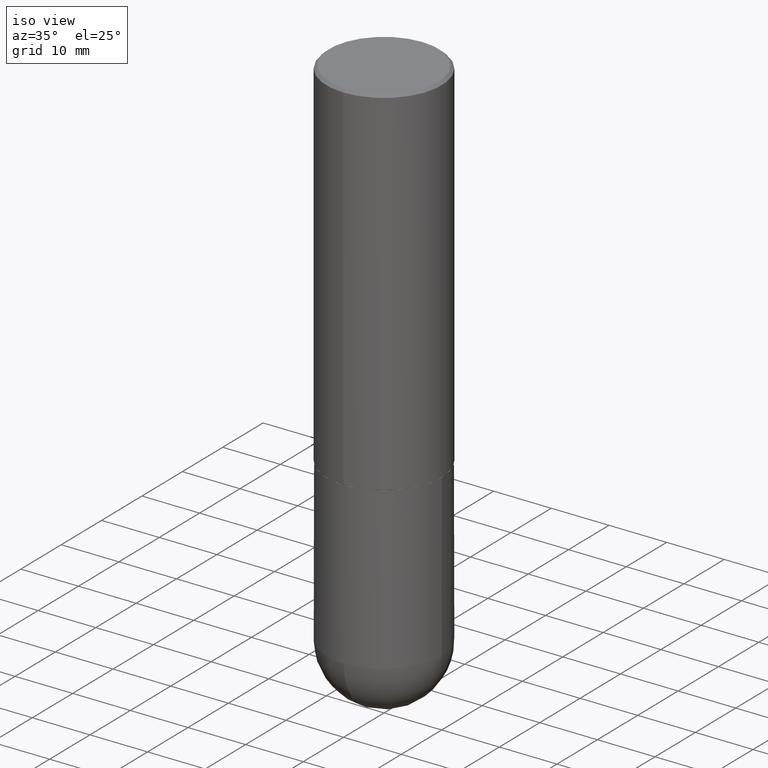
[diagram: clean part render]
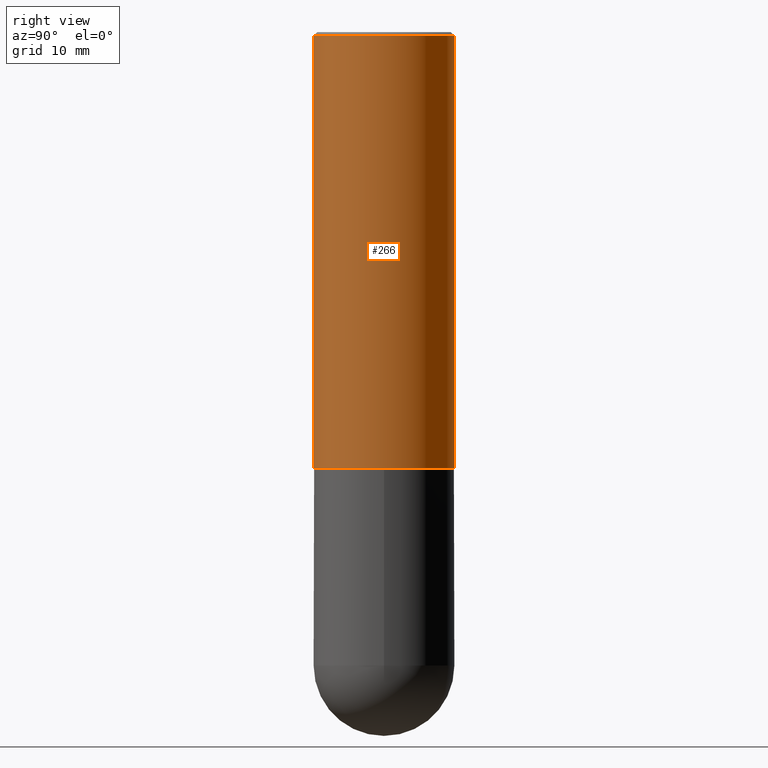
[diagram: tour spotlight — one face highlighted and labeled with its STEP entity id]
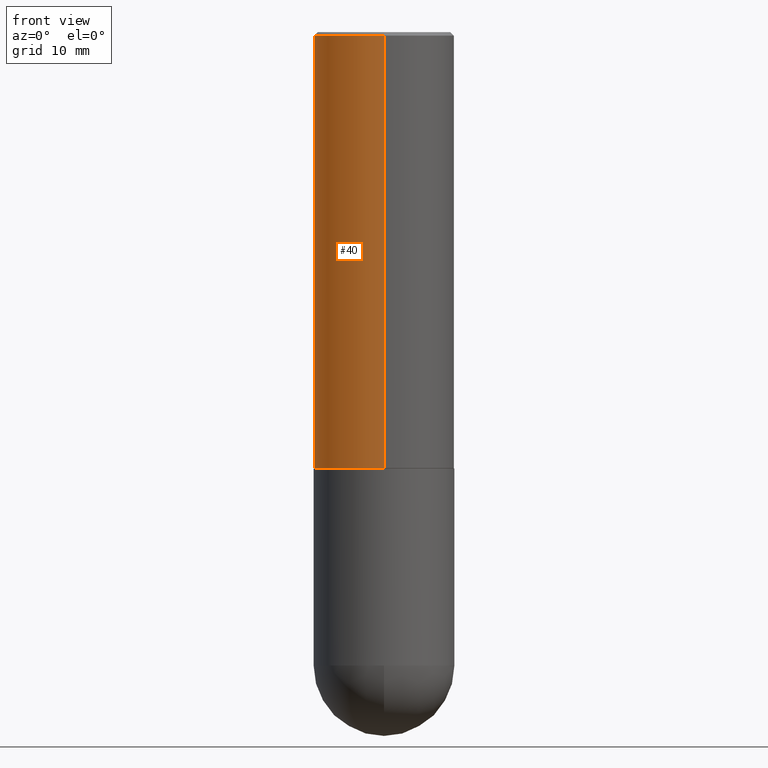
[diagram: tour spotlight — one face highlighted and labeled with its STEP entity id]
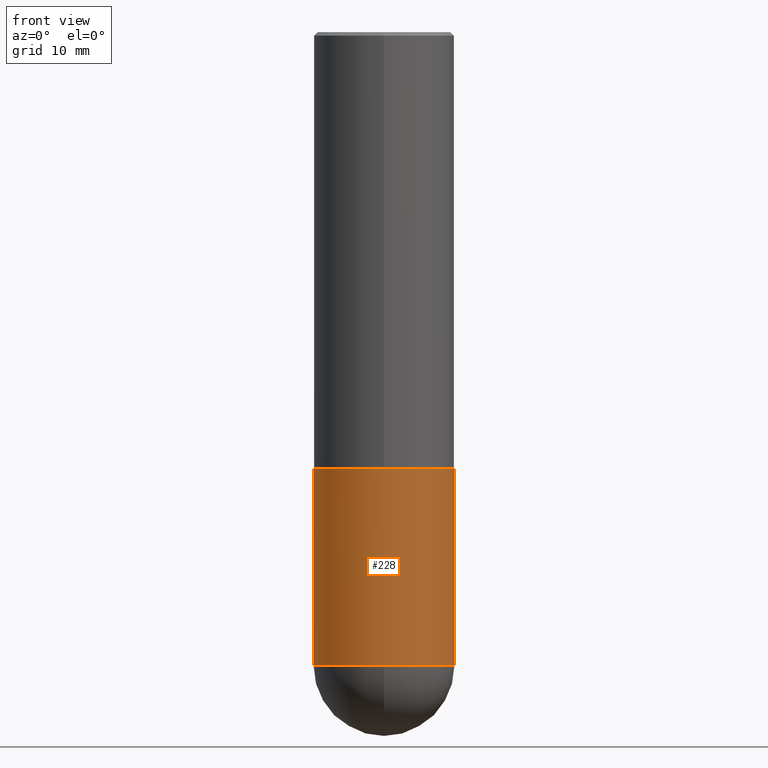
[diagram: tour spotlight — one face highlighted and labeled with its STEP entity id]
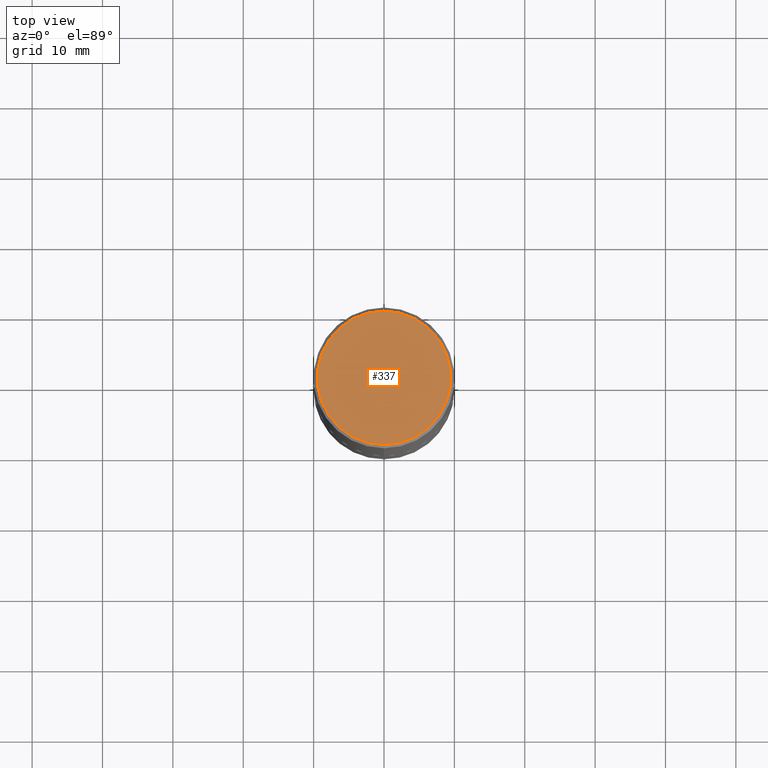
[diagram: tour spotlight — one face highlighted and labeled with its STEP entity id]
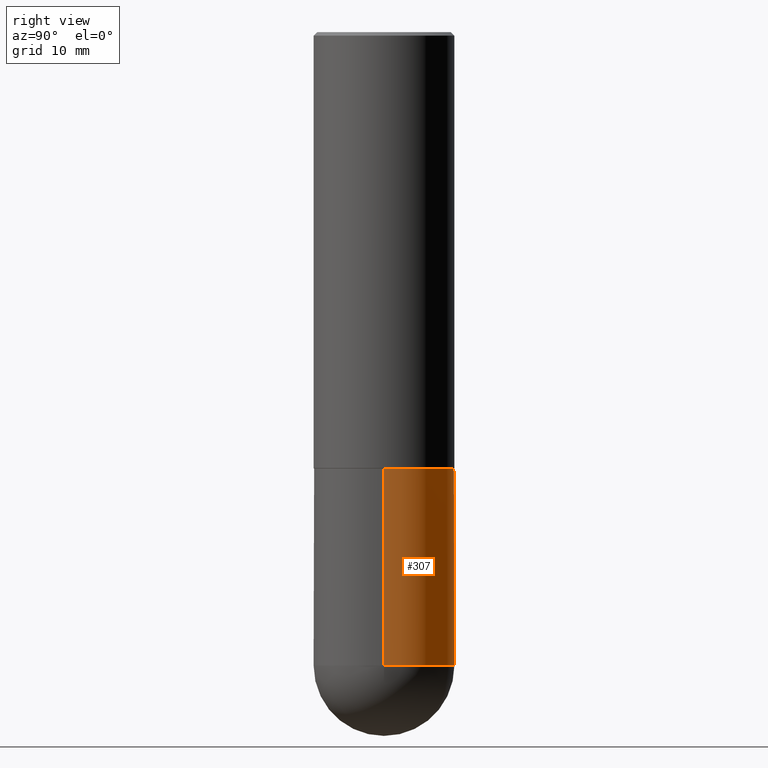
[diagram: tour spotlight — one face highlighted and labeled with its STEP entity id]
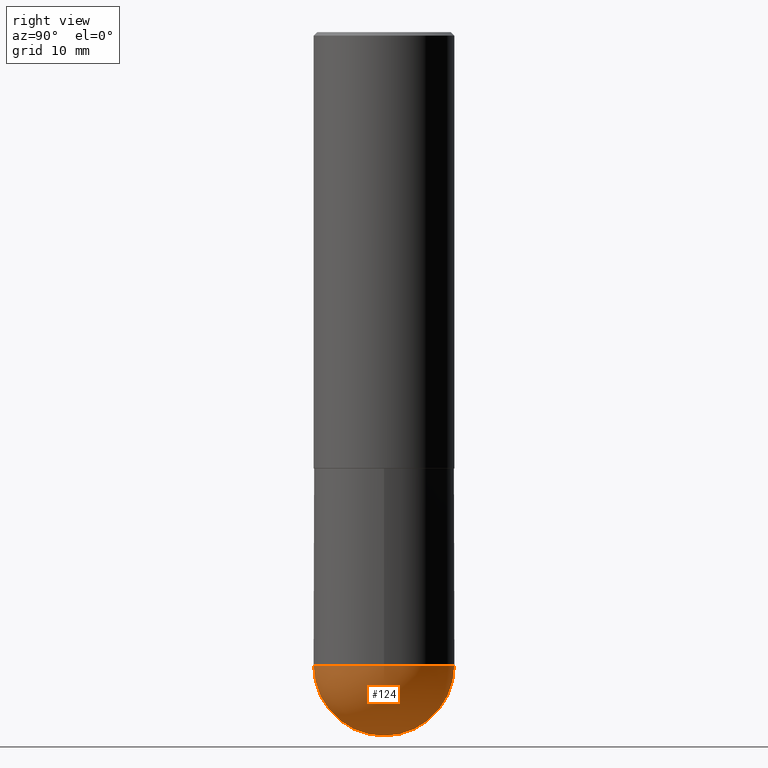
[diagram: tour spotlight — one face highlighted and labeled with its STEP entity id]
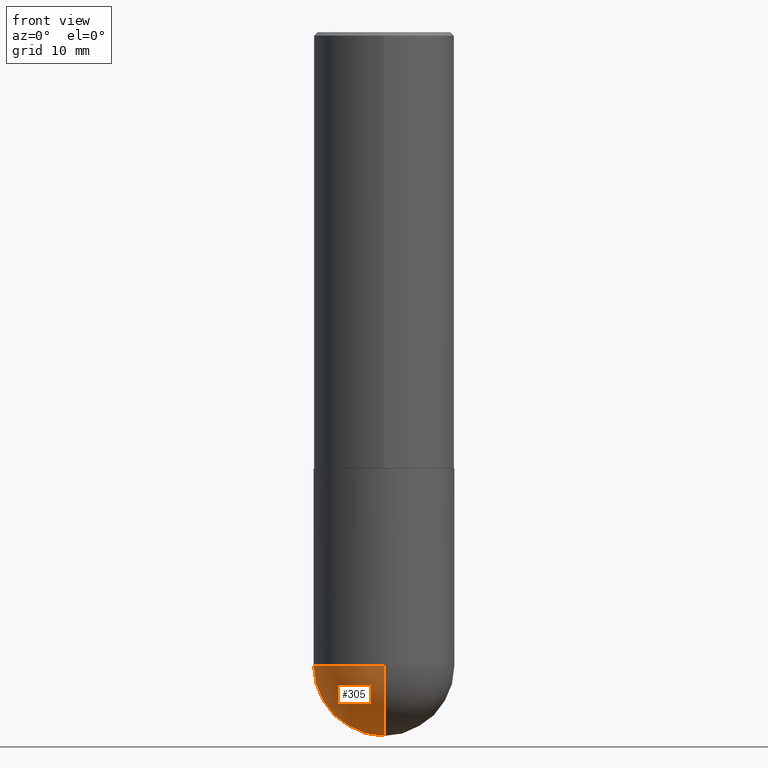
[diagram: tour spotlight — one face highlighted and labeled with its STEP entity id]
A machine part: a face-by-face anatomy tour. The part has 13 B-rep faces; the first image is the clean iso view, then the 7 largest visible faces are spotlighted one at a time (largest first), each with its STEP entity span.

Face 1 — right view, entity #266. In plain terms, the highlighted cylindrical surface (partial cylindrical patch) has radius 10 mm, axis along (-0, 0, 1).
Definition (entity closure, byte-faithful):
#16 = DIRECTION ( 'NONE',  ( -2.446177137184523035E-29, 3.490466968536327607E-15, 1.000000000000000000 ) ) ;
#23 = VECTOR ( 'NONE', #16, 39.37007874015748143 ) ;
#27 = VERTEX_POINT ( 'NONE', #166 ) ;
#30 = EDGE_LOOP ( 'NONE', ( #378, #383, #68, #407 ) ) ;
#45 = DIRECTION ( 'NONE',  ( -2.446177137184523035E-29, 3.490466968536327213E-15, 1.000000000000000000 ) ) ;
#53 = AXIS2_PLACEMENT_3D ( 'NONE', #327, #45, #300 ) ;
#58 = CIRCLE ( 'NONE', #53, 0.3937000000000002720 ) ;
#68 = ORIENTED_EDGE ( 'NONE', *, *, #343, .F. ) ;
#79 = EDGE_CURVE ( 'NONE', #85, #27, #171, .T. ) ;
#83 = DIRECTION ( 'NONE',  ( -2.446177137184523035E-29, 3.490466968536327213E-15, 1.000000000000000000 ) ) ;
#85 = VERTEX_POINT ( 'NONE', #386 ) ;
#107 = CARTESIAN_POINT ( 'NONE',  ( 2.797406750687515181E-15, 0.3937000000000001609, -1.374196845512752588E-15 ) ) ;
#115 = AXIS2_PLACEMENT_3D ( 'NONE', #359, #83, #179 ) ;
#132 = EDGE_CURVE ( 'NONE', #160, #349, #270, .T. ) ;
#147 = CARTESIAN_POINT ( 'NONE',  ( -2.700978061722651252E-15, -0.3937000000000001054, -0.01999999999999871672 ) ) ;
#149 = AXIS2_PLACEMENT_3D ( 'NONE', #158, #192, #284 ) ;
#158 = CARTESIAN_POINT ( 'NONE',  ( 0.000000000000000000, 0.000000000000000000, 0.000000000000000000 ) ) ;
#160 = VERTEX_POINT ( 'NONE', #274 ) ;
#166 = CARTESIAN_POINT ( 'NONE',  ( 2.749192406205083217E-15, 0.3936999999999999389, -0.02000000000000146452 ) ) ;
#170 = CIRCLE ( 'NONE', #115, 0.3937000000000000499 ) ;
#171 = LINE ( 'NONE', #107, #23 ) ;
#179 = DIRECTION ( 'NONE',  ( -6.982962677686265133E-15, -1.000000000000000000, 3.491137977679279424E-15 ) ) ;
#192 = DIRECTION ( 'NONE',  ( -2.446177137184523035E-29, 3.490466968536327213E-15, 1.000000000000000000 ) ) ;
#196 = EDGE_CURVE ( 'NONE', #160, #85, #58, .T. ) ;
#230 = VECTOR ( 'NONE', #273, 39.37007874015748143 ) ;
#234 = CARTESIAN_POINT ( 'NONE',  ( -2.749192406205084005E-15, -0.3937000000000001609, 1.374196845512752588E-15 ) ) ;
#266 = ADVANCED_FACE ( 'NONE', ( #310 ), #315, .T. ) ;
#270 = LINE ( 'NONE', #234, #230 ) ;
#273 = DIRECTION ( 'NONE',  ( -2.446177137184523035E-29, 3.490466968536327607E-15, 1.000000000000000000 ) ) ;
#274 = CARTESIAN_POINT ( 'NONE',  ( -2.749192406205025235E-15, -0.3937000000000088207, -2.439899999999998847 ) ) ;
#284 = DIRECTION ( 'NONE',  ( -6.982962677686265922E-15, -1.000000000000000000, 3.490466968536327213E-15 ) ) ;
#300 = DIRECTION ( 'NONE',  ( -6.982962677686265922E-15, -1.000000000000000000, 3.469453890861393601E-15 ) ) ;
#310 = FACE_OUTER_BOUND ( 'NONE', #30, .T. ) ;
#315 = CYLINDRICAL_SURFACE ( 'NONE', #149, 0.3937000000000001609 ) ;
#327 = CARTESIAN_POINT ( 'NONE',  ( 5.968427597016518954E-29, -8.516390356531785120E-15, -2.439900000000000180 ) ) ;
#343 = EDGE_CURVE ( 'NONE', #349, #27, #170, .T. ) ;
#349 = VERTEX_POINT ( 'NONE', #147 ) ;
#359 = CARTESIAN_POINT ( 'NONE',  ( 4.892354274369068595E-31, -6.980933937072685388E-17, -0.02000000000000009062 ) ) ;
#378 = ORIENTED_EDGE ( 'NONE', *, *, #196, .T. ) ;
#383 = ORIENTED_EDGE ( 'NONE', *, *, #79, .T. ) ;
#386 = CARTESIAN_POINT ( 'NONE',  ( 2.797406750687545552E-15, 0.3936999999999917788, -2.439900000000001512 ) ) ;
#407 = ORIENTED_EDGE ( 'NONE', *, *, #132, .F. ) ;

Face 2 — front view, entity #40. In plain terms, the highlighted cylindrical surface (partial cylindrical patch) has radius 10 mm, axis along (-0, 0, 1).
Definition (entity closure, byte-faithful):
#4 = CYLINDRICAL_SURFACE ( 'NONE', #353, 0.3937000000000001609 ) ;
#5 = DIRECTION ( 'NONE',  ( -6.982962677686265133E-15, -1.000000000000000000, 3.491137977679279424E-15 ) ) ;
#16 = DIRECTION ( 'NONE',  ( -2.446177137184523035E-29, 3.490466968536327607E-15, 1.000000000000000000 ) ) ;
#23 = VECTOR ( 'NONE', #16, 39.37007874015748143 ) ;
#27 = VERTEX_POINT ( 'NONE', #166 ) ;
#29 = AXIS2_PLACEMENT_3D ( 'NONE', #213, #301, #5 ) ;
#40 = ADVANCED_FACE ( 'NONE', ( #290 ), #4, .T. ) ;
#43 = DIRECTION ( 'NONE',  ( -2.446177137184523035E-29, 3.490466968536327213E-15, 1.000000000000000000 ) ) ;
#64 = EDGE_CURVE ( 'NONE', #85, #160, #119, .T. ) ;
#78 = DIRECTION ( 'NONE',  ( -6.982962677686265922E-15, -1.000000000000000000, 3.469453890861393601E-15 ) ) ;
#79 = EDGE_CURVE ( 'NONE', #85, #27, #171, .T. ) ;
#85 = VERTEX_POINT ( 'NONE', #386 ) ;
#107 = CARTESIAN_POINT ( 'NONE',  ( 2.797406750687515181E-15, 0.3937000000000001609, -1.374196845512752588E-15 ) ) ;
#119 = CIRCLE ( 'NONE', #346, 0.3937000000000002720 ) ;
#132 = EDGE_CURVE ( 'NONE', #160, #349, #270, .T. ) ;
#147 = CARTESIAN_POINT ( 'NONE',  ( -2.700978061722651252E-15, -0.3937000000000001054, -0.01999999999999871672 ) ) ;
#160 = VERTEX_POINT ( 'NONE', #274 ) ;
#166 = CARTESIAN_POINT ( 'NONE',  ( 2.749192406205083217E-15, 0.3936999999999999389, -0.02000000000000146452 ) ) ;
#171 = LINE ( 'NONE', #107, #23 ) ;
#173 = CARTESIAN_POINT ( 'NONE',  ( 5.968427597016518954E-29, -8.516390356531785120E-15, -2.439900000000000180 ) ) ;
#174 = CARTESIAN_POINT ( 'NONE',  ( 0.000000000000000000, 0.000000000000000000, 0.000000000000000000 ) ) ;
#185 = ORIENTED_EDGE ( 'NONE', *, *, #379, .F. ) ;
#191 = EDGE_LOOP ( 'NONE', ( #375, #412, #216, #185 ) ) ;
#213 = CARTESIAN_POINT ( 'NONE',  ( 4.892354274369068595E-31, -6.980933937072685388E-17, -0.02000000000000009062 ) ) ;
#216 = ORIENTED_EDGE ( 'NONE', *, *, #132, .T. ) ;
#230 = VECTOR ( 'NONE', #273, 39.37007874015748143 ) ;
#234 = CARTESIAN_POINT ( 'NONE',  ( -2.749192406205084005E-15, -0.3937000000000001609, 1.374196845512752588E-15 ) ) ;
#268 = CIRCLE ( 'NONE', #29, 0.3937000000000000499 ) ;
#270 = LINE ( 'NONE', #234, #230 ) ;
#273 = DIRECTION ( 'NONE',  ( -2.446177137184523035E-29, 3.490466968536327607E-15, 1.000000000000000000 ) ) ;
#274 = CARTESIAN_POINT ( 'NONE',  ( -2.749192406205025235E-15, -0.3937000000000088207, -2.439899999999998847 ) ) ;
#290 = FACE_OUTER_BOUND ( 'NONE', #191, .T. ) ;
#295 = DIRECTION ( 'NONE',  ( -6.982962677686265922E-15, -1.000000000000000000, 3.490466968536327213E-15 ) ) ;
#301 = DIRECTION ( 'NONE',  ( -2.446177137184523035E-29, 3.490466968536327213E-15, 1.000000000000000000 ) ) ;
#302 = DIRECTION ( 'NONE',  ( -2.446177137184523035E-29, 3.490466968536327213E-15, 1.000000000000000000 ) ) ;
#346 = AXIS2_PLACEMENT_3D ( 'NONE', #173, #43, #78 ) ;
#349 = VERTEX_POINT ( 'NONE', #147 ) ;
#353 = AXIS2_PLACEMENT_3D ( 'NONE', #174, #302, #295 ) ;
#375 = ORIENTED_EDGE ( 'NONE', *, *, #79, .F. ) ;
#379 = EDGE_CURVE ( 'NONE', #27, #349, #268, .T. ) ;
#386 = CARTESIAN_POINT ( 'NONE',  ( 2.797406750687545552E-15, 0.3936999999999917788, -2.439900000000001512 ) ) ;
#412 = ORIENTED_EDGE ( 'NONE', *, *, #64, .T. ) ;

Face 3 — front view, entity #228. In plain terms, the highlighted cylindrical surface (partial cylindrical patch) has radius 10 mm, axis along (-0, 0, 1).
Definition (entity closure, byte-faithful):
#9 = CARTESIAN_POINT ( 'NONE',  ( 8.665029620955792948E-29, -1.237136582792291707E-14, -3.543299999999999450 ) ) ;
#18 = DIRECTION ( 'NONE',  ( 1.000000000000000000, -6.982962677686267499E-15, 0.000000000000000000 ) ) ;
#41 = CARTESIAN_POINT ( 'NONE',  ( -0.3937000000000001054, -7.649454563265064966E-15, -3.543299999999999450 ) ) ;
#47 = EDGE_CURVE ( 'NONE', #366, #286, #308, .T. ) ;
#59 = EDGE_CURVE ( 'NONE', #62, #286, #146, .T. ) ;
#62 = VERTEX_POINT ( 'NONE', #199 ) ;
#65 = DIRECTION ( 'NONE',  ( -2.445468806185136877E-29, 3.491481338843145188E-15, 1.000000000000000000 ) ) ;
#77 = DIRECTION ( 'NONE',  ( 1.000000000000000000, -6.982962677686266711E-15, 0.000000000000000000 ) ) ;
#81 = DIRECTION ( 'NONE',  ( -2.445468806185136877E-29, 3.491481338843145188E-15, 1.000000000000000000 ) ) ;
#84 = FACE_OUTER_BOUND ( 'NONE', #222, .T. ) ;
#95 = AXIS2_PLACEMENT_3D ( 'NONE', #351, #296, #18 ) ;
#97 = ORIENTED_EDGE ( 'NONE', *, *, #253, .F. ) ;
#102 = CARTESIAN_POINT ( 'NONE',  ( 8.665029620955792948E-29, -1.237136582792291707E-14, -3.543299999999999450 ) ) ;
#109 = DIRECTION ( 'NONE',  ( 1.000000000000000000, -6.982962677686266711E-15, 0.000000000000000000 ) ) ;
#114 = CYLINDRICAL_SURFACE ( 'NONE', #169, 0.3937000000000001054 ) ;
#123 = CARTESIAN_POINT ( 'NONE',  ( 0.000000000000000000, 0.000000000000000000, 0.000000000000000000 ) ) ;
#128 = LINE ( 'NONE', #224, #397 ) ;
#130 = DIRECTION ( 'NONE',  ( -2.445468806185136597E-29, 3.491481338843145583E-15, 1.000000000000000000 ) ) ;
#133 = DIRECTION ( 'NONE',  ( 1.000000000000000000, -6.982962677686266711E-15, 4.876176775795935793E-29 ) ) ;
#138 = EDGE_CURVE ( 'NONE', #152, #62, #186, .T. ) ;
#143 = AXIS2_PLACEMENT_3D ( 'NONE', #9, #293, #109 ) ;
#146 = LINE ( 'NONE', #265, #328 ) ;
#152 = VERTEX_POINT ( 'NONE', #390 ) ;
#169 = AXIS2_PLACEMENT_3D ( 'NONE', #123, #130, #133 ) ;
#186 = CIRCLE ( 'NONE', #143, 0.3937000000000001054 ) ;
#193 = VERTEX_POINT ( 'NONE', #41 ) ;
#199 = CARTESIAN_POINT ( 'NONE',  ( 0.3937000000000001054, -1.319605372015766376E-14, -3.543299999999999450 ) ) ;
#222 = EDGE_LOOP ( 'NONE', ( #97, #311, #260, #226, #292 ) ) ;
#223 = CIRCLE ( 'NONE', #235, 0.3937000000000001054 ) ;
#224 = CARTESIAN_POINT ( 'NONE',  ( -0.3937000000000001054, 2.797406750687515181E-15, -1.936584745033357016E-29 ) ) ;
#226 = ORIENTED_EDGE ( 'NONE', *, *, #59, .T. ) ;
#228 = ADVANCED_FACE ( 'NONE', ( #84 ), #114, .T. ) ;
#235 = AXIS2_PLACEMENT_3D ( 'NONE', #102, #291, #77 ) ;
#253 = EDGE_CURVE ( 'NONE', #193, #366, #128, .T. ) ;
#260 = ORIENTED_EDGE ( 'NONE', *, *, #138, .T. ) ;
#265 = CARTESIAN_POINT ( 'NONE',  ( 0.3937000000000001054, -2.749192406205084005E-15, 1.919750796630860452E-29 ) ) ;
#286 = VERTEX_POINT ( 'NONE', #289 ) ;
#289 = CARTESIAN_POINT ( 'NONE',  ( 0.3937000000000000499, -1.127154920618731776E-14, -2.440900000000000070 ) ) ;
#291 = DIRECTION ( 'NONE',  ( -2.445468806185136597E-29, 3.491481338843145583E-15, 1.000000000000000000 ) ) ;
#292 = ORIENTED_EDGE ( 'NONE', *, *, #47, .F. ) ;
#293 = DIRECTION ( 'NONE',  ( -2.445468806185136597E-29, 3.491481338843145583E-15, 1.000000000000000000 ) ) ;
#296 = DIRECTION ( 'NONE',  ( -2.445468806185136597E-29, 3.491481338843145583E-15, 1.000000000000000000 ) ) ;
#308 = CIRCLE ( 'NONE', #95, 0.3937000000000000499 ) ;
#311 = ORIENTED_EDGE ( 'NONE', *, *, #376, .T. ) ;
#328 = VECTOR ( 'NONE', #81, 39.37007874015748143 ) ;
#332 = CARTESIAN_POINT ( 'NONE',  ( -0.3937000000000000499, -7.649454563265061811E-15, -2.440900000000000070 ) ) ;
#351 = CARTESIAN_POINT ( 'NONE',  ( 5.969144809017300159E-29, -8.522356799982234543E-15, -2.440900000000000070 ) ) ;
#366 = VERTEX_POINT ( 'NONE', #332 ) ;
#376 = EDGE_CURVE ( 'NONE', #193, #152, #223, .T. ) ;
#390 = CARTESIAN_POINT ( 'NONE',  ( -2.797406750687430773E-15, -0.3937000000000128175, -3.543299999999997674 ) ) ;
#397 = VECTOR ( 'NONE', #65, 39.37007874015748143 ) ;

Face 4 — top view, entity #337. In plain terms, the highlighted planar face has unit normal (0, -0, -1).
Definition (entity closure, byte-faithful):
#28 = ORIENTED_EDGE ( 'NONE', *, *, #272, .T. ) ;
#34 = CARTESIAN_POINT ( 'NONE',  ( 2.609533152651358592E-15, 0.3737000000000001432, -1.398484316016064294E-15 ) ) ;
#36 = CIRCLE ( 'NONE', #329, 0.3737000000000001432 ) ;
#44 = FACE_OUTER_BOUND ( 'NONE', #168, .T. ) ;
#61 = CARTESIAN_POINT ( 'NONE',  ( 4.603549299917414550E-45, -6.568836134199453814E-31, -1.881936197480760582E-16 ) ) ;
#67 = DIRECTION ( 'NONE',  ( -2.446177137184523035E-29, 3.490466968536327213E-15, 1.000000000000000000 ) ) ;
#111 = CARTESIAN_POINT ( 'NONE',  ( 4.603549299917414550E-45, -6.568836134199453814E-31, -1.881936197480760582E-16 ) ) ;
#117 = EDGE_CURVE ( 'NONE', #198, #227, #136, .T. ) ;
#136 = CIRCLE ( 'NONE', #176, 0.3737000000000001432 ) ;
#137 = AXIS2_PLACEMENT_3D ( 'NONE', #34, #364, #175 ) ;
#168 = EDGE_LOOP ( 'NONE', ( #28, #288 ) ) ;
#175 = DIRECTION ( 'NONE',  ( 6.982962677686265922E-15, 1.000000000000000000, -3.490466968536327607E-15 ) ) ;
#176 = AXIS2_PLACEMENT_3D ( 'NONE', #111, #384, #354 ) ;
#198 = VERTEX_POINT ( 'NONE', #360 ) ;
#212 = CARTESIAN_POINT ( 'NONE',  ( 2.679362779428221102E-15, 0.3737000000000001432, -1.492581125890102212E-15 ) ) ;
#221 = DIRECTION ( 'NONE',  ( -6.982962677686265922E-15, -1.000000000000000000, 3.490466968536327607E-15 ) ) ;
#227 = VERTEX_POINT ( 'NONE', #212 ) ;
#272 = EDGE_CURVE ( 'NONE', #227, #198, #36, .T. ) ;
#288 = ORIENTED_EDGE ( 'NONE', *, *, #117, .T. ) ;
#329 = AXIS2_PLACEMENT_3D ( 'NONE', #61, #67, #221 ) ;
#337 = ADVANCED_FACE ( 'NONE', ( #44 ), #391, .F. ) ;
#354 = DIRECTION ( 'NONE',  ( -6.982962677686265922E-15, -1.000000000000000000, 3.490466968536327607E-15 ) ) ;
#360 = CARTESIAN_POINT ( 'NONE',  ( -2.632373081744936710E-15, -0.3737000000000001432, 1.116193886393949948E-15 ) ) ;
#364 = DIRECTION ( 'NONE',  ( 2.446177137184522474E-29, -3.490466968536327607E-15, -1.000000000000000000 ) ) ;
#384 = DIRECTION ( 'NONE',  ( -2.446177137184523035E-29, 3.490466968536327213E-15, 1.000000000000000000 ) ) ;
#391 = PLANE ( 'NONE',  #137 ) ;

Face 5 — right view, entity #307. In plain terms, the highlighted cylindrical surface (partial cylindrical patch) has radius 10 mm, axis along (-0, 0, 1).
Definition (entity closure, byte-faithful):
#2 = ORIENTED_EDGE ( 'NONE', *, *, #59, .F. ) ;
#6 = CIRCLE ( 'NONE', #74, 0.3937000000000001054 ) ;
#8 = EDGE_LOOP ( 'NONE', ( #334, #255, #157, #2, #313 ) ) ;
#12 = EDGE_CURVE ( 'NONE', #88, #193, #101, .T. ) ;
#20 = AXIS2_PLACEMENT_3D ( 'NONE', #209, #49, #180 ) ;
#41 = CARTESIAN_POINT ( 'NONE',  ( -0.3937000000000001054, -7.649454563265064966E-15, -3.543299999999999450 ) ) ;
#49 = DIRECTION ( 'NONE',  ( -2.445468806185136597E-29, 3.491481338843145583E-15, 1.000000000000000000 ) ) ;
#59 = EDGE_CURVE ( 'NONE', #62, #286, #146, .T. ) ;
#62 = VERTEX_POINT ( 'NONE', #199 ) ;
#65 = DIRECTION ( 'NONE',  ( -2.445468806185136877E-29, 3.491481338843145188E-15, 1.000000000000000000 ) ) ;
#74 = AXIS2_PLACEMENT_3D ( 'NONE', #331, #324, #207 ) ;
#76 = CARTESIAN_POINT ( 'NONE',  ( 2.749192406205169202E-15, 0.3936999999999876709, -3.543300000000000782 ) ) ;
#81 = DIRECTION ( 'NONE',  ( -2.445468806185136877E-29, 3.491481338843145188E-15, 1.000000000000000000 ) ) ;
#88 = VERTEX_POINT ( 'NONE', #76 ) ;
#101 = CIRCLE ( 'NONE', #402, 0.3937000000000001054 ) ;
#112 = DIRECTION ( 'NONE',  ( 1.000000000000000000, -6.982962677686266711E-15, 4.876176775795935793E-29 ) ) ;
#128 = LINE ( 'NONE', #224, #397 ) ;
#146 = LINE ( 'NONE', #265, #328 ) ;
#157 = ORIENTED_EDGE ( 'NONE', *, *, #204, .F. ) ;
#159 = EDGE_CURVE ( 'NONE', #62, #88, #6, .T. ) ;
#180 = DIRECTION ( 'NONE',  ( 1.000000000000000000, -6.982962677686267499E-15, 0.000000000000000000 ) ) ;
#193 = VERTEX_POINT ( 'NONE', #41 ) ;
#199 = CARTESIAN_POINT ( 'NONE',  ( 0.3937000000000001054, -1.319605372015766376E-14, -3.543299999999999450 ) ) ;
#204 = EDGE_CURVE ( 'NONE', #286, #366, #385, .T. ) ;
#206 = FACE_OUTER_BOUND ( 'NONE', #8, .T. ) ;
#207 = DIRECTION ( 'NONE',  ( 1.000000000000000000, -6.982962677686266711E-15, 0.000000000000000000 ) ) ;
#209 = CARTESIAN_POINT ( 'NONE',  ( 5.969144809017300159E-29, -8.522356799982234543E-15, -2.440900000000000070 ) ) ;
#224 = CARTESIAN_POINT ( 'NONE',  ( -0.3937000000000001054, 2.797406750687515181E-15, -1.936584745033357016E-29 ) ) ;
#231 = AXIS2_PLACEMENT_3D ( 'NONE', #330, #240, #112 ) ;
#240 = DIRECTION ( 'NONE',  ( -2.445468806185136597E-29, 3.491481338843145583E-15, 1.000000000000000000 ) ) ;
#253 = EDGE_CURVE ( 'NONE', #193, #366, #128, .T. ) ;
#255 = ORIENTED_EDGE ( 'NONE', *, *, #253, .T. ) ;
#258 = DIRECTION ( 'NONE',  ( -2.445468806185136597E-29, 3.491481338843145583E-15, 1.000000000000000000 ) ) ;
#261 = CARTESIAN_POINT ( 'NONE',  ( 8.665029620955792948E-29, -1.237136582792291707E-14, -3.543299999999999450 ) ) ;
#265 = CARTESIAN_POINT ( 'NONE',  ( 0.3937000000000001054, -2.749192406205084005E-15, 1.919750796630860452E-29 ) ) ;
#286 = VERTEX_POINT ( 'NONE', #289 ) ;
#289 = CARTESIAN_POINT ( 'NONE',  ( 0.3937000000000000499, -1.127154920618731776E-14, -2.440900000000000070 ) ) ;
#307 = ADVANCED_FACE ( 'NONE', ( #206 ), #326, .T. ) ;
#313 = ORIENTED_EDGE ( 'NONE', *, *, #159, .T. ) ;
#324 = DIRECTION ( 'NONE',  ( -2.445468806185136597E-29, 3.491481338843145583E-15, 1.000000000000000000 ) ) ;
#326 = CYLINDRICAL_SURFACE ( 'NONE', #231, 0.3937000000000001054 ) ;
#328 = VECTOR ( 'NONE', #81, 39.37007874015748143 ) ;
#330 = CARTESIAN_POINT ( 'NONE',  ( 0.000000000000000000, 0.000000000000000000, 0.000000000000000000 ) ) ;
#331 = CARTESIAN_POINT ( 'NONE',  ( 8.665029620955792948E-29, -1.237136582792291707E-14, -3.543299999999999450 ) ) ;
#332 = CARTESIAN_POINT ( 'NONE',  ( -0.3937000000000000499, -7.649454563265061811E-15, -2.440900000000000070 ) ) ;
#334 = ORIENTED_EDGE ( 'NONE', *, *, #12, .T. ) ;
#345 = DIRECTION ( 'NONE',  ( 1.000000000000000000, -6.982962677686266711E-15, 0.000000000000000000 ) ) ;
#366 = VERTEX_POINT ( 'NONE', #332 ) ;
#385 = CIRCLE ( 'NONE', #20, 0.3937000000000000499 ) ;
#397 = VECTOR ( 'NONE', #65, 39.37007874015748143 ) ;
#402 = AXIS2_PLACEMENT_3D ( 'NONE', #261, #258, #345 ) ;

Face 6 — right view, entity #124. In plain terms, the highlighted spherical surface has radius 10 mm.
Definition (entity closure, byte-faithful):
#6 = CIRCLE ( 'NONE', #74, 0.3937000000000001054 ) ;
#9 = CARTESIAN_POINT ( 'NONE',  ( 8.665029620955792948E-29, -1.237136582792291707E-14, -3.543299999999999450 ) ) ;
#13 = DIRECTION ( 'NONE',  ( -1.000000000000000000, 6.982962677686265922E-15, -4.883557194083112340E-29 ) ) ;
#62 = VERTEX_POINT ( 'NONE', #199 ) ;
#66 = VERTEX_POINT ( 'NONE', #141 ) ;
#74 = AXIS2_PLACEMENT_3D ( 'NONE', #331, #324, #207 ) ;
#76 = CARTESIAN_POINT ( 'NONE',  ( 2.749192406205169202E-15, 0.3936999999999876709, -3.543300000000000782 ) ) ;
#87 = EDGE_CURVE ( 'NONE', #66, #88, #262, .T. ) ;
#88 = VERTEX_POINT ( 'NONE', #76 ) ;
#89 = CIRCLE ( 'NONE', #322, 0.3937000000000003830 ) ;
#100 = ORIENTED_EDGE ( 'NONE', *, *, #319, .F. ) ;
#108 = DIRECTION ( 'NONE',  ( -1.000000000000000000, 7.105427357601001070E-15, -4.926315508542082329E-29 ) ) ;
#109 = DIRECTION ( 'NONE',  ( 1.000000000000000000, -6.982962677686266711E-15, 0.000000000000000000 ) ) ;
#124 = ADVANCED_FACE ( 'NONE', ( #237 ), #325, .T. ) ;
#135 = EDGE_LOOP ( 'NONE', ( #100, #247, #369, #309 ) ) ;
#138 = EDGE_CURVE ( 'NONE', #152, #62, #186, .T. ) ;
#141 = CARTESIAN_POINT ( 'NONE',  ( 9.313524860439493426E-29, -1.419603722692429674E-14, -3.937000000000000277 ) ) ;
#143 = AXIS2_PLACEMENT_3D ( 'NONE', #9, #293, #109 ) ;
#144 = CARTESIAN_POINT ( 'NONE',  ( 8.333909843041907822E-29, -1.284554819606296579E-14, -3.543299999999999894 ) ) ;
#148 = DIRECTION ( 'NONE',  ( 1.000000000000000000, -6.982962677686265922E-15, 4.883557194083112340E-29 ) ) ;
#152 = VERTEX_POINT ( 'NONE', #390 ) ;
#159 = EDGE_CURVE ( 'NONE', #62, #88, #6, .T. ) ;
#167 = CARTESIAN_POINT ( 'NONE',  ( 8.333909843041907822E-29, -1.284554819606296579E-14, -3.543299999999999894 ) ) ;
#177 = CARTESIAN_POINT ( 'NONE',  ( 8.333909843041907822E-29, -1.284554819606296579E-14, -3.543299999999999894 ) ) ;
#183 = AXIS2_PLACEMENT_3D ( 'NONE', #144, #148, #203 ) ;
#186 = CIRCLE ( 'NONE', #143, 0.3937000000000001054 ) ;
#199 = CARTESIAN_POINT ( 'NONE',  ( 0.3937000000000001054, -1.319605372015766376E-14, -3.543299999999999450 ) ) ;
#203 = DIRECTION ( 'NONE',  ( 6.982962677686265133E-15, 1.000000000000000000, 0.000000000000000000 ) ) ;
#207 = DIRECTION ( 'NONE',  ( 1.000000000000000000, -6.982962677686266711E-15, 0.000000000000000000 ) ) ;
#237 = FACE_OUTER_BOUND ( 'NONE', #135, .T. ) ;
#238 = DIRECTION ( 'NONE',  ( -7.105427357600999492E-15, -1.000000000000000000, 0.000000000000000000 ) ) ;
#247 = ORIENTED_EDGE ( 'NONE', *, *, #87, .T. ) ;
#262 = CIRCLE ( 'NONE', #183, 0.3937000000000003830 ) ;
#293 = DIRECTION ( 'NONE',  ( -2.445468806185136597E-29, 3.491481338843145583E-15, 1.000000000000000000 ) ) ;
#309 = ORIENTED_EDGE ( 'NONE', *, *, #138, .F. ) ;
#319 = EDGE_CURVE ( 'NONE', #66, #152, #89, .T. ) ;
#320 = DIRECTION ( 'NONE',  ( 6.982962677686265922E-15, 1.000000000000000000, -4.163344669033671690E-15 ) ) ;
#322 = AXIS2_PLACEMENT_3D ( 'NONE', #167, #108, #238 ) ;
#324 = DIRECTION ( 'NONE',  ( -2.445468806185136597E-29, 3.491481338843145583E-15, 1.000000000000000000 ) ) ;
#325 = SPHERICAL_SURFACE ( 'NONE', #409, 0.3937000000000003830 ) ;
#331 = CARTESIAN_POINT ( 'NONE',  ( 8.665029620955792948E-29, -1.237136582792291707E-14, -3.543299999999999450 ) ) ;
#369 = ORIENTED_EDGE ( 'NONE', *, *, #159, .F. ) ;
#390 = CARTESIAN_POINT ( 'NONE',  ( -2.797406750687430773E-15, -0.3937000000000128175, -3.543299999999997674 ) ) ;
#409 = AXIS2_PLACEMENT_3D ( 'NONE', #177, #13, #320 ) ;

Face 7 — front view, entity #305. In plain terms, the highlighted spherical surface has radius 10 mm.
Definition (entity closure, byte-faithful):
#12 = EDGE_CURVE ( 'NONE', #88, #193, #101, .T. ) ;
#41 = CARTESIAN_POINT ( 'NONE',  ( -0.3937000000000001054, -7.649454563265064966E-15, -3.543299999999999450 ) ) ;
#48 = DIRECTION ( 'NONE',  ( -1.000000000000000000, 6.982962677686265922E-15, -4.883557194083112340E-29 ) ) ;
#57 = SPHERICAL_SURFACE ( 'NONE', #69, 0.3937000000000003830 ) ;
#66 = VERTEX_POINT ( 'NONE', #141 ) ;
#69 = AXIS2_PLACEMENT_3D ( 'NONE', #110, #48, #398 ) ;
#76 = CARTESIAN_POINT ( 'NONE',  ( 2.749192406205169202E-15, 0.3936999999999876709, -3.543300000000000782 ) ) ;
#77 = DIRECTION ( 'NONE',  ( 1.000000000000000000, -6.982962677686266711E-15, 0.000000000000000000 ) ) ;
#87 = EDGE_CURVE ( 'NONE', #66, #88, #262, .T. ) ;
#88 = VERTEX_POINT ( 'NONE', #76 ) ;
#89 = CIRCLE ( 'NONE', #322, 0.3937000000000003830 ) ;
#101 = CIRCLE ( 'NONE', #402, 0.3937000000000001054 ) ;
#102 = CARTESIAN_POINT ( 'NONE',  ( 8.665029620955792948E-29, -1.237136582792291707E-14, -3.543299999999999450 ) ) ;
#104 = ORIENTED_EDGE ( 'NONE', *, *, #87, .F. ) ;
#108 = DIRECTION ( 'NONE',  ( -1.000000000000000000, 7.105427357601001070E-15, -4.926315508542082329E-29 ) ) ;
#110 = CARTESIAN_POINT ( 'NONE',  ( 8.333909843041907822E-29, -1.284554819606296579E-14, -3.543299999999999894 ) ) ;
#134 = ORIENTED_EDGE ( 'NONE', *, *, #319, .T. ) ;
#141 = CARTESIAN_POINT ( 'NONE',  ( 9.313524860439493426E-29, -1.419603722692429674E-14, -3.937000000000000277 ) ) ;
#144 = CARTESIAN_POINT ( 'NONE',  ( 8.333909843041907822E-29, -1.284554819606296579E-14, -3.543299999999999894 ) ) ;
#148 = DIRECTION ( 'NONE',  ( 1.000000000000000000, -6.982962677686265922E-15, 4.883557194083112340E-29 ) ) ;
#152 = VERTEX_POINT ( 'NONE', #390 ) ;
#156 = FACE_OUTER_BOUND ( 'NONE', #189, .T. ) ;
#167 = CARTESIAN_POINT ( 'NONE',  ( 8.333909843041907822E-29, -1.284554819606296579E-14, -3.543299999999999894 ) ) ;
#183 = AXIS2_PLACEMENT_3D ( 'NONE', #144, #148, #203 ) ;
#189 = EDGE_LOOP ( 'NONE', ( #104, #134, #377, #282 ) ) ;
#193 = VERTEX_POINT ( 'NONE', #41 ) ;
#203 = DIRECTION ( 'NONE',  ( 6.982962677686265133E-15, 1.000000000000000000, 0.000000000000000000 ) ) ;
#223 = CIRCLE ( 'NONE', #235, 0.3937000000000001054 ) ;
#235 = AXIS2_PLACEMENT_3D ( 'NONE', #102, #291, #77 ) ;
#238 = DIRECTION ( 'NONE',  ( -7.105427357600999492E-15, -1.000000000000000000, 0.000000000000000000 ) ) ;
#258 = DIRECTION ( 'NONE',  ( -2.445468806185136597E-29, 3.491481338843145583E-15, 1.000000000000000000 ) ) ;
#261 = CARTESIAN_POINT ( 'NONE',  ( 8.665029620955792948E-29, -1.237136582792291707E-14, -3.543299999999999450 ) ) ;
#262 = CIRCLE ( 'NONE', #183, 0.3937000000000003830 ) ;
#282 = ORIENTED_EDGE ( 'NONE', *, *, #12, .F. ) ;
#291 = DIRECTION ( 'NONE',  ( -2.445468806185136597E-29, 3.491481338843145583E-15, 1.000000000000000000 ) ) ;
#305 = ADVANCED_FACE ( 'NONE', ( #156 ), #57, .T. ) ;
#319 = EDGE_CURVE ( 'NONE', #66, #152, #89, .T. ) ;
#322 = AXIS2_PLACEMENT_3D ( 'NONE', #167, #108, #238 ) ;
#345 = DIRECTION ( 'NONE',  ( 1.000000000000000000, -6.982962677686266711E-15, 0.000000000000000000 ) ) ;
#376 = EDGE_CURVE ( 'NONE', #193, #152, #223, .T. ) ;
#377 = ORIENTED_EDGE ( 'NONE', *, *, #376, .F. ) ;
#390 = CARTESIAN_POINT ( 'NONE',  ( -2.797406750687430773E-15, -0.3937000000000128175, -3.543299999999997674 ) ) ;
#398 = DIRECTION ( 'NONE',  ( 6.982962677686265922E-15, 1.000000000000000000, -4.163344669033671690E-15 ) ) ;
#402 = AXIS2_PLACEMENT_3D ( 'NONE', #261, #258, #345 ) ;